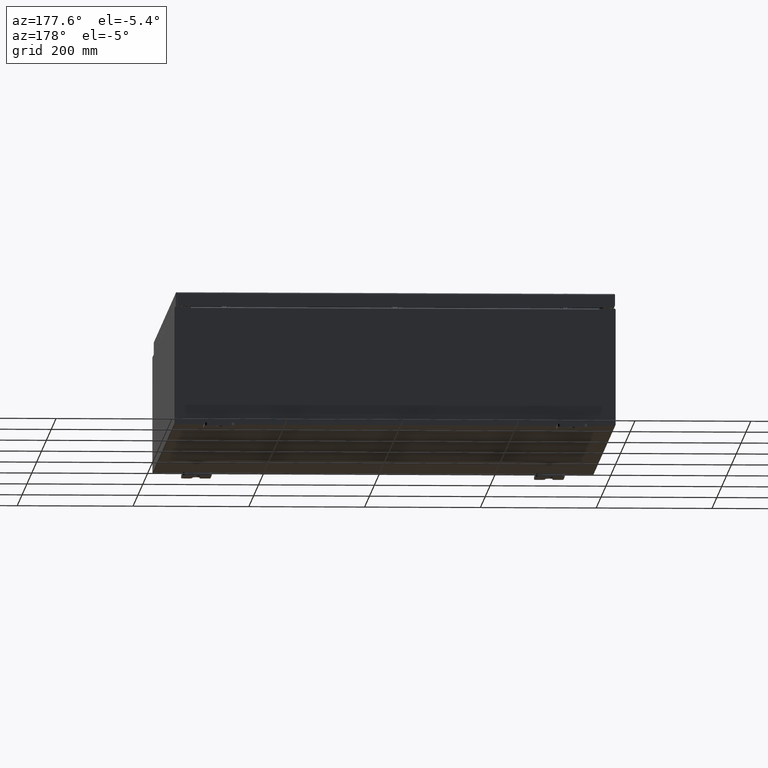
[diagram: clean part render]
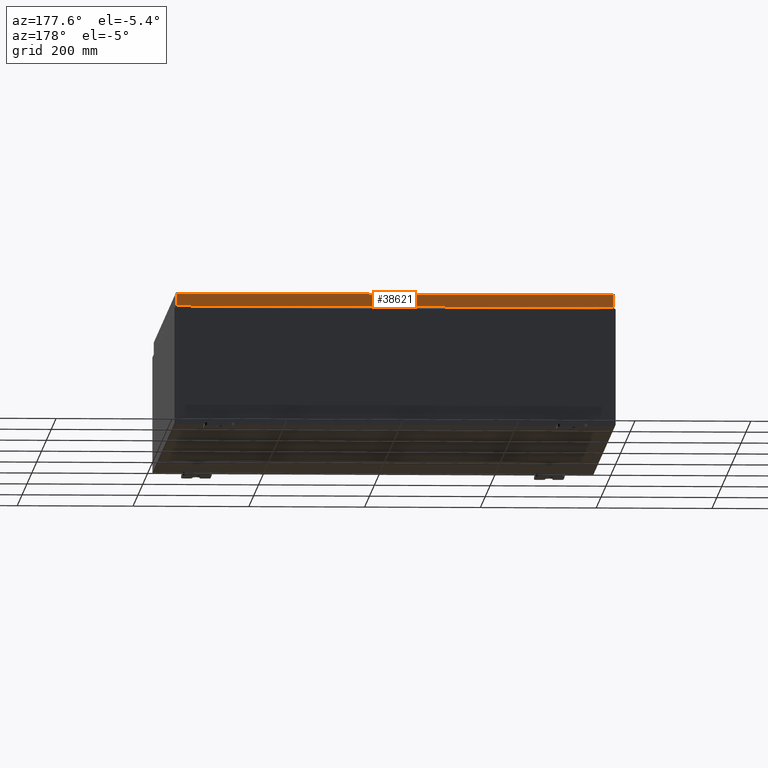
[diagram: same view with one face highlighted and labeled with its STEP entity id]
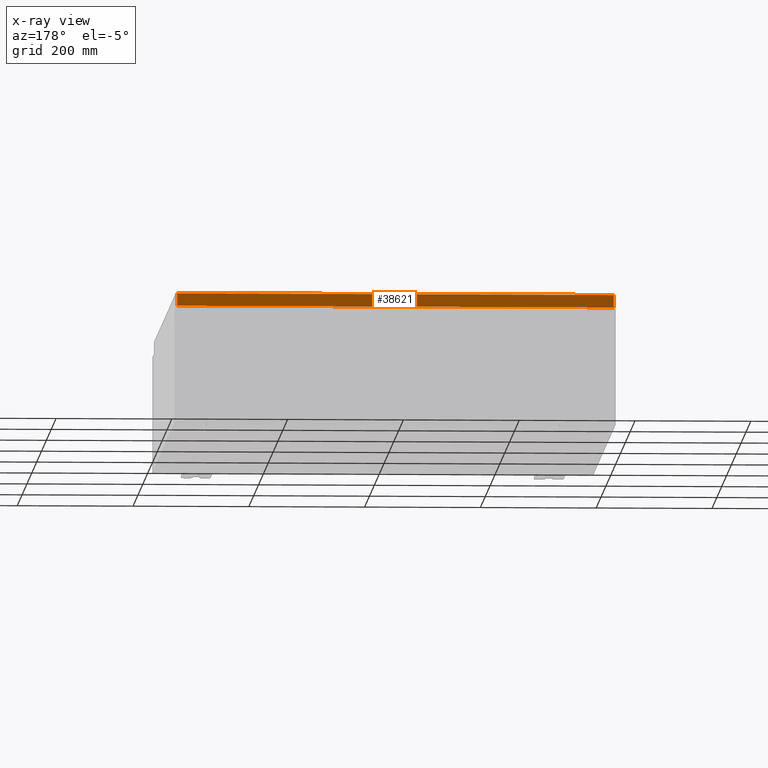
[diagram: x-ray of the same camera — body ghosted, the highlighted face saturated]
A machine part, auxiliary view. The second image highlights one B-rep face of the part: STEP entity #38621.
The next image is the same camera in x-ray: the body ghosted, the highlighted face saturated — about 0% of this face is hidden behind the body in this view.
In plain terms, the highlighted planar face has unit normal (0, -1, -0).
Its self-contained STEP definition (entity closure, byte-faithful):
#3800 = CARTESIAN_POINT ( 'NONE',  ( -14.93750000000000200, 17.93750000000000000, -0.9377000000000035300 ) ) ;
#6620 = ORIENTED_EDGE ( 'NONE', *, *, #28972, .F. ) ;
#7031 = CARTESIAN_POINT ( 'NONE',  ( -5.607638657142989500E-030, 17.93750000000000000, 4.568609605355735900E-014 ) ) ;
#8033 = CARTESIAN_POINT ( 'NONE',  ( 14.84865786437626900, 17.93750000000000000, -0.9376999999999996400 ) ) ;
#8911 = DIRECTION ( 'NONE',  ( 1.000000000000000000, -4.379057701015054300E-047, 1.234475243998914100E-016 ) ) ;
#11224 = CARTESIAN_POINT ( 'NONE',  ( -14.84865786437627300, 17.93750000000000000, -0.08770000000000008300 ) ) ;
#11795 = VECTOR ( 'NONE', #20339, 39.37007874015748100 ) ;
#15271 = CARTESIAN_POINT ( 'NONE',  ( 14.84865786437626800, 17.93750000000000000, 4.568609605355735900E-014 ) ) ;
#17267 = PLANE ( 'NONE',  #49180 ) ;
#17497 = ORIENTED_EDGE ( 'NONE', *, *, #60239, .F. ) ;
#20339 = DIRECTION ( 'NONE',  ( 0.0000000000000000000, 2.532419924601855400E-015, -1.000000000000000000 ) ) ;
#21329 = CARTESIAN_POINT ( 'NONE',  ( -14.84865786437627100, 17.93750000000000000, -0.07469999999999980800 ) ) ;
#21461 = VECTOR ( 'NONE', #62056, 39.37007874015748100 ) ;
#22347 = DIRECTION ( 'NONE',  ( 0.0000000000000000000, 2.532419924601855400E-015, -1.000000000000000000 ) ) ;
#24223 = CARTESIAN_POINT ( 'NONE',  ( -14.93750000000000200, 17.93750000000000000, -0.08770000000000008300 ) ) ;
#24838 = VERTEX_POINT ( 'NONE', #61884 ) ;
#28972 = EDGE_CURVE ( 'NONE', #56251, #60193, #32749, .T. ) ;
#30055 = LINE ( 'NONE', #24223, #57210 ) ;
#32749 = LINE ( 'NONE', #3800, #59877 ) ;
#34935 = LINE ( 'NONE', #21329, #21461 ) ;
#38621 = ADVANCED_FACE ( 'NONE', ( #58488 ), #17267, .F. ) ;
#38785 = LINE ( 'NONE', #15271, #11795 ) ;
#42911 = ORIENTED_EDGE ( 'NONE', *, *, #60393, .T. ) ;
#49180 = AXIS2_PLACEMENT_3D ( 'NONE', #7031, #52894, #22347 ) ;
#52894 = DIRECTION ( 'NONE',  ( 3.126209704330586500E-031, -1.000000000000000000, -2.532419924601855400E-015 ) ) ;
#56251 = VERTEX_POINT ( 'NONE', #57281 ) ;
#56505 = VERTEX_POINT ( 'NONE', #11224 ) ;
#57210 = VECTOR ( 'NONE', #59872, 39.37007874015748100 ) ;
#57281 = CARTESIAN_POINT ( 'NONE',  ( -14.84865786437627100, 17.93750000000000000, -0.9377000000000035300 ) ) ;
#58210 = EDGE_CURVE ( 'NONE', #56505, #56251, #34935, .T. ) ;
#58488 = FACE_OUTER_BOUND ( 'NONE', #59536, .T. ) ;
#58951 = ORIENTED_EDGE ( 'NONE', *, *, #58210, .F. ) ;
#59536 = EDGE_LOOP ( 'NONE', ( #17497, #42911, #6620, #58951 ) ) ;
#59872 = DIRECTION ( 'NONE',  ( -1.000000000000000000, -3.126209704330586900E-031, -7.827163121213317500E-046 ) ) ;
#59877 = VECTOR ( 'NONE', #8911, 39.37007874015748100 ) ;
#60193 = VERTEX_POINT ( 'NONE', #8033 ) ;
#60239 = EDGE_CURVE ( 'NONE', #24838, #56505, #30055, .T. ) ;
#60393 = EDGE_CURVE ( 'NONE', #24838, #60193, #38785, .T. ) ;
#61884 = CARTESIAN_POINT ( 'NONE',  ( 14.84865786437626900, 17.93750000000000000, -0.08770000000000008300 ) ) ;
#62056 = DIRECTION ( 'NONE',  ( -0.0000000000000000000, 2.532419924601855400E-015, -1.000000000000000000 ) ) ;